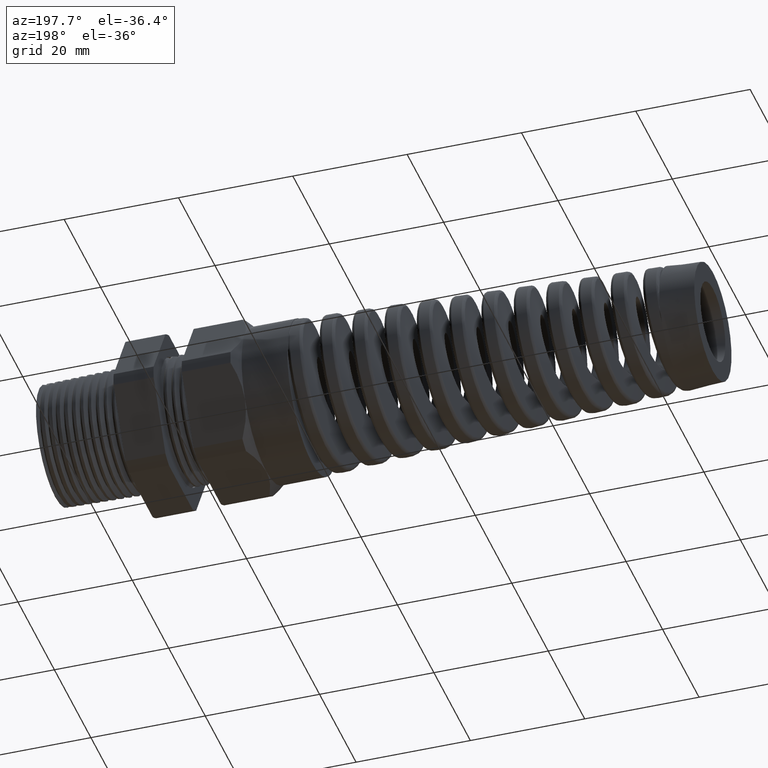
[diagram: clean part render]
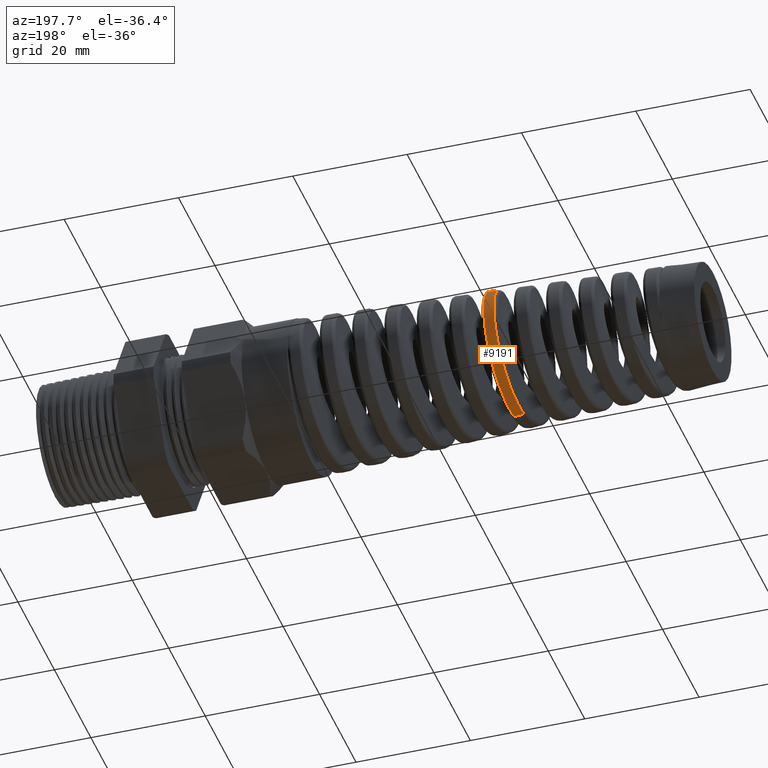
[diagram: same view with one face highlighted and labeled with its STEP entity id]
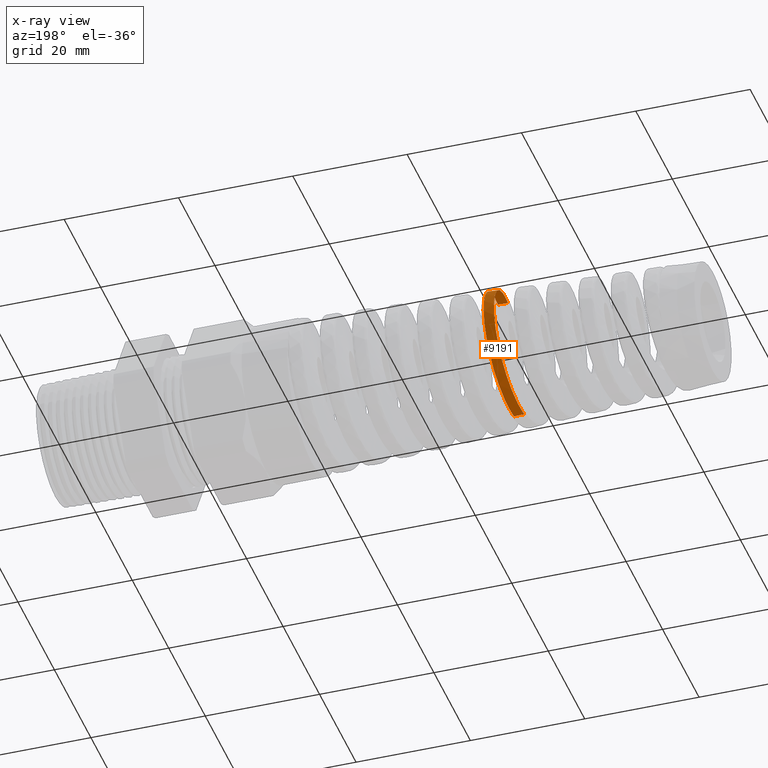
[diagram: x-ray of the same camera — body ghosted, the highlighted face saturated]
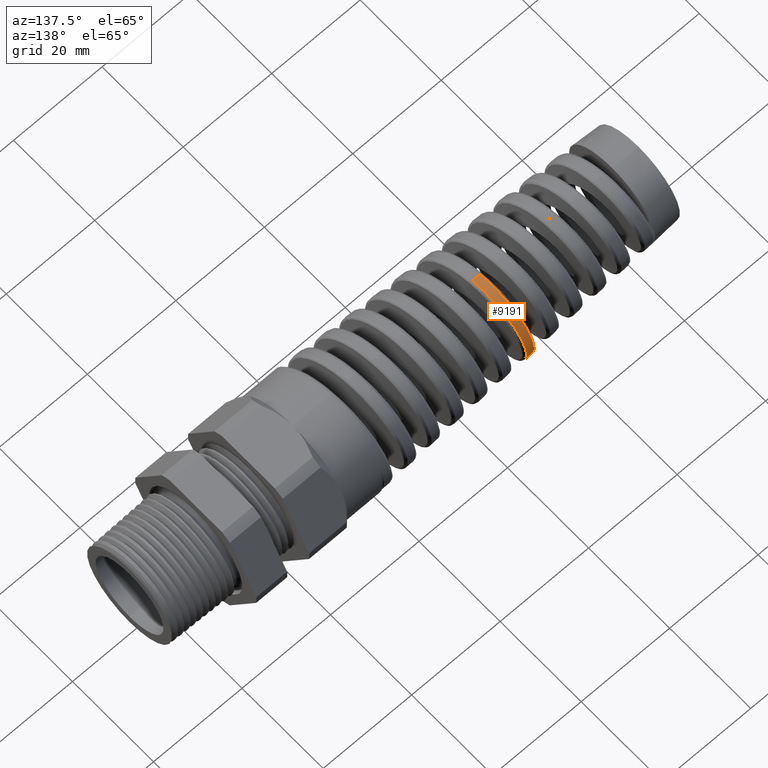
[diagram: same view with one face highlighted and labeled with its STEP entity id]
A machine part, auxiliary view. The second image highlights one B-rep face of the part: STEP entity #9191.
The next image is the same camera in x-ray: the body ghosted, the highlighted face saturated — about 0% of this face is hidden behind the body in this view.
A second angle (auxiliary view) of the same face is appended — the face is thin or edge-on in the first view.
In plain terms, the highlighted conical surface has half-angle 2.5 deg.
Its self-contained STEP definition (entity closure, byte-faithful):
#171 = EDGE_CURVE ( 'NONE', #9192, #192, #6572, .T. ) ;
#191 = ORIENTED_EDGE ( 'NONE', *, *, #171, .F. ) ;
#192 = VERTEX_POINT ( 'NONE', #6567 ) ;
#420 = ORIENTED_EDGE ( 'NONE', *, *, #421, .T. ) ;
#421 = EDGE_CURVE ( 'NONE', #423, #192, #6716, .T. ) ;
#422 = ORIENTED_EDGE ( 'NONE', *, *, #424, .T. ) ;
#423 = VERTEX_POINT ( 'NONE', #6717 ) ;
#424 = EDGE_CURVE ( 'NONE', #19204, #423, #6742, .T. ) ;
#429 = EDGE_CURVE ( 'NONE', #9192, #19204, #6822, .T. ) ;
#432 = ORIENTED_EDGE ( 'NONE', *, *, #429, .T. ) ;
#6567 = CARTESIAN_POINT ( 'NONE',  ( -2.879667577083220300, 5.469545711401259800E-013, -0.4658329278224777600 ) ) ;
#6569 = DIRECTION ( 'NONE',  ( 0.9990482215818576900, 0.0000000000000000000, -0.04361938736533632600 ) ) ;
#6570 = VECTOR ( 'NONE', #6569, 39.37007874015748100 ) ;
#6571 = CARTESIAN_POINT ( 'NONE',  ( -1.409999999999999900, 0.0000000000000000000, -0.5299999999999999200 ) ) ;
#6572 = LINE ( 'NONE', #6571, #6570 ) ;
#6701 = CARTESIAN_POINT ( 'NONE',  ( -2.796057127073379600, 0.3202171043964746600, 0.3436742604515603500 ) ) ;
#6702 = CARTESIAN_POINT ( 'NONE',  ( -2.794901268218248800, 0.3087176845181514600, 0.3541057587308799600 ) ) ;
#6703 = CARTESIAN_POINT ( 'NONE',  ( -2.792613083344449400, 0.2850045603970072800, 0.3735822861902750600 ) ) ;
#6704 = CARTESIAN_POINT ( 'NONE',  ( -2.791474762833239700, 0.2727367648882400600, 0.3826875851090892300 ) ) ;
#6705 = CARTESIAN_POINT ( 'NONE',  ( -2.789201042620686800, 0.2473944486181617900, 0.3996553276647125700 ) ) ;
#6706 = CARTESIAN_POINT ( 'NONE',  ( -2.788066038858495200, 0.2343198764972762000, 0.4075177465775709500 ) ) ;
#6707 = CARTESIAN_POINT ( 'NONE',  ( -2.785790505226805700, 0.2073565818558156500, 0.4219871249710854800 ) ) ;
#6708 = CARTESIAN_POINT ( 'NONE',  ( -2.784645585001770800, 0.1934193391996787100, 0.4286140450439818200 ) ) ;
#6709 = CARTESIAN_POINT ( 'NONE',  ( -2.781206980529783200, 0.1506654647735639900, 0.4464044010015029200 ) ) ;
#6710 = CARTESIAN_POINT ( 'NONE',  ( -2.778950324742671000, 0.1214425882007444900, 0.4553016468278492400 ) ) ;
#6711 = CARTESIAN_POINT ( 'NONE',  ( -2.775546881179742400, 0.07657032886923814700, 0.4643556374526838200 ) ) ;
#6712 = CARTESIAN_POINT ( 'NONE',  ( -2.774409523696960400, 0.06143865424620657100, 0.4666531649846749100 ) ) ;
#6713 = CARTESIAN_POINT ( 'NONE',  ( -2.772118716524639000, 0.03081865308245644900, 0.4697703786529018300 ) ) ;
#6714 = CARTESIAN_POINT ( 'NONE',  ( -2.770965199294318700, 0.01532906036265518900, 0.4705789761331387600 ) ) ;
#6715 = CARTESIAN_POINT ( 'NONE',  ( -2.769824617340381800, -3.160244313474981900E-015, 0.4706287750167118000 ) ) ;
#6716 = B_SPLINE_CURVE_WITH_KNOTS ( 'NONE', 3,
 ( #6715, #6714, #6713, #6712, #6711, #6710, #6709, #6708, #6707, #6706, #6705, #6704, #6703, #6702, #6701, #6776, #6775, #6774, #6773, #6772, #6771, #6770, #6769, #6768, #6767, #6766, #6765, #6764, #6763, #6762, #6761, #6760, #6759, #6758, #6757, #6756, #6755, #6754, #6753, #6752, #6751, #6750, #6749, #6748, #6747, #6746, #6745, #6744, #6743 ),
 .UNSPECIFIED., .F., .F.,
 ( 4, 2, 2, 2, 2, 2, 2, 2, 2, 2, 2, 2, 2, 2, 2, 2, 2, 2, 2, 2, 2, 2, 1, 2, 4 ),
 ( 0.4694751933714107500, 0.4706551712530038200, 0.4718351491345968400, 0.4741951048977829900, 0.4753750827793760700, 0.4765550606609690900, 0.4777350385425621600, 0.4789150164241552400, 0.4812749721873413300, 0.4836349279505274800, 0.4859948837137135800, 0.4871748615953066500, 0.4883548394768997300, 0.4907147952400858200, 0.4930747510032719700, 0.4942547288848649900, 0.4954347067664580700, 0.4977946625296442200, 0.4989746404112372900, 0.5001546182928303700, 0.5025145740560164100, 0.5036945519376094800, 0.5048745298192025600, 0.5060545077007956300, 0.5072344855823887100 ),
 .UNSPECIFIED. ) ;
#6717 = CARTESIAN_POINT ( 'NONE',  ( -2.769824617340381800, -3.160244313474981900E-015, 0.4706287750167118000 ) ) ;
#6739 = DIRECTION ( 'NONE',  ( 0.9990482215818576900, 5.341834311772763300E-018, 0.04361938736533632600 ) ) ;
#6740 = VECTOR ( 'NONE', #6739, 39.37007874015748100 ) ;
#6741 = CARTESIAN_POINT ( 'NONE',  ( -1.409999999999999900, 6.490628035480971200E-017, 0.5299999999999999200 ) ) ;
#6742 = LINE ( 'NONE', #6741, #6740 ) ;
#6743 = CARTESIAN_POINT ( 'NONE',  ( -2.879667577083220300, 5.469545711401259800E-013, -0.4658329278224777600 ) ) ;
#6744 = CARTESIAN_POINT ( 'NONE',  ( -2.878513298164826900, 0.01538681623498895800, -0.4658833247284168700 ) ) ;
#6745 = CARTESIAN_POINT ( 'NONE',  ( -2.877350105956318700, 0.03088443338288502900, -0.4651620893118841900 ) ) ;
#6746 = CARTESIAN_POINT ( 'NONE',  ( -2.875047148297439600, 0.06140453963809028300, -0.4622259283947832100 ) ) ;
#6747 = CARTESIAN_POINT ( 'NONE',  ( -2.872754567329303100, 0.09162394273105903300, -0.4578024120926853000 ) ) ;
#6748 = CARTESIAN_POINT ( 'NONE',  ( -2.870464038102440000, 0.1212503492403929100, -0.4504527714514426400 ) ) ;
#6749 = CARTESIAN_POINT ( 'NONE',  ( -2.868167072227588500, 0.1505759652955794800, -0.4416217277856856500 ) ) ;
#6750 = CARTESIAN_POINT ( 'NONE',  ( -2.867009382895522300, 0.1651602579184025800, -0.4364345871105237400 ) ) ;
#6751 = CARTESIAN_POINT ( 'NONE',  ( -2.863548912807567100, 0.2078979084752333200, -0.4187900154204002300 ) ) ;
#6752 = CARTESIAN_POINT ( 'NONE',  ( -2.861277160249337600, 0.2348247207940059000, -0.4043992163538459600 ) ) ;
#6753 = CARTESIAN_POINT ( 'NONE',  ( -2.857847346327781600, 0.2729299275872502100, -0.3789870107404891800 ) ) ;
#6754 = CARTESIAN_POINT ( 'NONE',  ( -2.856700550972821200, 0.2852480909796686300, -0.3698739956460177500 ) ) ;
#6755 = CARTESIAN_POINT ( 'NONE',  ( -2.854388741748366400, 0.3090940331165091800, -0.3503260992028104400 ) ) ;
#6756 = CARTESIAN_POINT ( 'NONE',  ( -2.853229640256641700, 0.3205548547545168400, -0.3399353689261077100 ) ) ;
#6757 = CARTESIAN_POINT ( 'NONE',  ( -2.849785119320762800, 0.3530269720503064200, -0.3074525870138163900 ) ) ;
#6758 = CARTESIAN_POINT ( 'NONE',  ( -2.847513857959167900, 0.3723756153746357000, -0.2838785678858082900 ) ) ;
#6759 = CARTESIAN_POINT ( 'NONE',  ( -2.844078013026415600, 0.3979327656937855000, -0.2456319240703092300 ) ) ;
#6760 = CARTESIAN_POINT ( 'NONE',  ( -2.842920922248027200, 0.4059080042256989500, -0.2323209123203104600 ) ) ;
#6761 = CARTESIAN_POINT ( 'NONE',  ( -2.840623210682796900, 0.4203936638445968100, -0.2051762133397373200 ) ) ;
#6762 = CARTESIAN_POINT ( 'NONE',  ( -2.839481542783454800, 0.4269206082768418100, -0.1913364513173516600 ) ) ;
#6763 = CARTESIAN_POINT ( 'NONE',  ( -2.836060016538192000, 0.4444065477040413700, -0.1490360442643164900 ) ) ;
#6764 = CARTESIAN_POINT ( 'NONE',  ( -2.833783171351283300, 0.4532909503897069600, -0.1198018825969603300 ) ) ;
#6765 = CARTESIAN_POINT ( 'NONE',  ( -2.829158586701564300, 0.4653064789958955600, -0.05919479105070622700 ) ) ;
#6766 = CARTESIAN_POINT ( 'NONE',  ( -2.826880128572468300, 0.4682532829342002100, -0.02867210201699844600 ) ) ;
#6767 = CARTESIAN_POINT ( 'NONE',  ( -2.823469507923232600, 0.4682234243586396700, 0.01708037377123367000 ) ) ;
#6768 = CARTESIAN_POINT ( 'NONE',  ( -2.822332027565875200, 0.4674701609171401100, 0.03234511354179435400 ) ) ;
#6769 = CARTESIAN_POINT ( 'NONE',  ( -2.820043185652855400, 0.4644475291465823300, 0.06290202591207030800 ) ) ;
#6770 = CARTESIAN_POINT ( 'NONE',  ( -2.818886534454379000, 0.4621587190438410400, 0.07826274540879499300 ) ) ;
#6771 = CARTESIAN_POINT ( 'NONE',  ( -2.815447864294487300, 0.4531266694023459200, 0.1234526198298760100 ) ) ;
#6772 = CARTESIAN_POINT ( 'NONE',  ( -2.813178635441462300, 0.4442420347776939700, 0.1526346708264994800 ) ) ;
#6773 = CARTESIAN_POINT ( 'NONE',  ( -2.808610312401737200, 0.4208315667978411700, 0.2091318865130940300 ) ) ;
#6774 = CARTESIAN_POINT ( 'NONE',  ( -2.806298038463488400, 0.4061229818610213000, 0.2366293068174580800 ) ) ;
#6775 = CARTESIAN_POINT ( 'NONE',  ( -2.801749919292936500, 0.3721428031847330300, 0.2874462674001396200 ) ) ;
#6776 = CARTESIAN_POINT ( 'NONE',  ( -2.799491978064904800, 0.3528040982582358900, 0.3110439546628286900 ) ) ;
#6777 = CARTESIAN_POINT ( 'NONE',  ( -2.848350754152112300, 0.1201738631428210400, 0.4517406087043505100 ) ) ;
#6778 = CARTESIAN_POINT ( 'NONE',  ( -2.850651472699592400, 0.1495155491143070600, 0.4427895477860349600 ) ) ;
#6779 = CARTESIAN_POINT ( 'NONE',  ( -2.851801252577573600, 0.1639444849695335100, 0.4375942047347145500 ) ) ;
#6780 = CARTESIAN_POINT ( 'NONE',  ( -2.855228388334568400, 0.2060563919965725000, 0.4200725684757854500 ) ) ;
#6781 = CARTESIAN_POINT ( 'NONE',  ( -2.857500011315860600, 0.2327752268827707200, 0.4057689625979887800 ) ) ;
#6782 = CARTESIAN_POINT ( 'NONE',  ( -2.860940860728924000, 0.2707981476489014200, 0.3803466167565556800 ) ) ;
#6783 = CARTESIAN_POINT ( 'NONE',  ( -2.862098581908763000, 0.2831870934136910300, 0.3711522250904563700 ) ) ;
#6784 = CARTESIAN_POINT ( 'NONE',  ( -2.864392410988623200, 0.3067927086718251800, 0.3517579954020786400 ) ) ;
#6785 = CARTESIAN_POINT ( 'NONE',  ( -2.865531568794727100, 0.3180466610897583200, 0.3415432835002120100 ) ) ;
#6786 = CARTESIAN_POINT ( 'NONE',  ( -2.868945121820813500, 0.3501978172563903200, 0.3093821322616776000 ) ) ;
#6787 = CARTESIAN_POINT ( 'NONE',  ( -2.871215690603960100, 0.3694999264604235100, 0.2859333819914269300 ) ) ;
#6788 = CARTESIAN_POINT ( 'NONE',  ( -2.875841785472774700, 0.4036592953586464200, 0.2348594942369213700 ) ) ;
#6789 = CARTESIAN_POINT ( 'NONE',  ( -2.878126188170168700, 0.4179801221576504600, 0.2080250895687968700 ) ) ;
#6790 = CARTESIAN_POINT ( 'NONE',  ( -2.881552740840932700, 0.4354152012327321400, 0.1660329553345442900 ) ) ;
#6791 = CARTESIAN_POINT ( 'NONE',  ( -2.882694656409140700, 0.4405522014767495100, 0.1517364352719029800 ) ) ;
#6792 = CARTESIAN_POINT ( 'NONE',  ( -2.884990995901418400, 0.4494468812050945200, 0.1225329196649510000 ) ) ;
#6793 = CARTESIAN_POINT ( 'NONE',  ( -2.886149911633654900, 0.4532097007426629200, 0.1075660251543064900 ) ) ;
#6794 = CARTESIAN_POINT ( 'NONE',  ( -2.889592336730242300, 0.4621677477860886000, 0.06268050407899561400 ) ) ;
#6795 = CARTESIAN_POINT ( 'NONE',  ( -2.891863110575464200, 0.4651569240906601200, 0.03251797143324487700 ) ) ;
#6796 = CARTESIAN_POINT ( 'NONE',  ( -2.895302792139810200, 0.4652147829126119200, -0.01307496169130233100 ) ) ;
#6797 = CARTESIAN_POINT ( 'NONE',  ( -2.896457404999988900, 0.4644877768237979400, -0.02836583101730812500 ) ) ;
#6798 = CARTESIAN_POINT ( 'NONE',  ( -2.898776643880693900, 0.4615058256277827000, -0.05892118619409079900 ) ) ;
#6799 = CARTESIAN_POINT ( 'NONE',  ( -2.899927433946159400, 0.4592722699488036600, -0.07400302594844347700 ) ) ;
#6800 = CARTESIAN_POINT ( 'NONE',  ( -2.903365803745748600, 0.4504160343904944400, -0.1186791535434609700 ) ) ;
#6801 = CARTESIAN_POINT ( 'NONE',  ( -2.905637773419599900, 0.4416579753641940400, -0.1477095191981557500 ) ) ;
#6802 = CARTESIAN_POINT ( 'NONE',  ( -2.909093624314664800, 0.4241494829368580000, -0.1900943840070405100 ) ) ;
#6803 = CARTESIAN_POINT ( 'NONE',  ( -2.910254760709719300, 0.4175629740015015500, -0.2040373185795523700 ) ) ;
#6804 = CARTESIAN_POINT ( 'NONE',  ( -2.912554348088402200, 0.4032046381913280700, -0.2309173474662830100 ) ) ;
#6805 = CARTESIAN_POINT ( 'NONE',  ( -2.914844127928546400, 0.3876013891607713000, -0.2569525210576235100 ) ) ;
#6806 = CARTESIAN_POINT ( 'NONE',  ( -2.917136396485759500, 0.3695497675806389500, -0.2813241171977072200 ) ) ;
#6807 = CARTESIAN_POINT ( 'NONE',  ( -2.919439386569274500, 0.3502592660969189900, -0.3048530721103105400 ) ) ;
#6808 = CARTESIAN_POINT ( 'NONE',  ( -2.920601721759729300, 0.3399427029911013000, -0.3162469116815092000 ) ) ;
#6809 = CARTESIAN_POINT ( 'NONE',  ( -2.924077538378325100, 0.3074348273549855100, -0.3487411067595696500 ) ) ;
#6810 = CARTESIAN_POINT ( 'NONE',  ( -2.926355100939013600, 0.2839552175620991300, -0.3679608276056121600 ) ) ;
#6811 = CARTESIAN_POINT ( 'NONE',  ( -2.929791318063378100, 0.2461067540020754600, -0.3932273714186228000 ) ) ;
#6812 = CARTESIAN_POINT ( 'NONE',  ( -2.930939871991358200, 0.2330492565476560400, -0.4010514435090976600 ) ) ;
#6813 = CARTESIAN_POINT ( 'NONE',  ( -2.933255842853300400, 0.2060265371062265100, -0.4154678538439639500 ) ) ;
#6814 = CARTESIAN_POINT ( 'NONE',  ( -2.934418820514498500, 0.1921098552648923300, -0.4220240094934651900 ) ) ;
#6815 = CARTESIAN_POINT ( 'NONE',  ( -2.937877371807900300, 0.1499037377375913300, -0.4394247336952749100 ) ) ;
#6816 = CARTESIAN_POINT ( 'NONE',  ( -2.940167162276773100, 0.1208894126228707000, -0.4481743636091123400 ) ) ;
#6817 = CARTESIAN_POINT ( 'NONE',  ( -2.943628710561403000, 0.07605154013025476600, -0.4570060732215272500 ) ) ;
#6818 = CARTESIAN_POINT ( 'NONE',  ( -2.944793517617587700, 0.06079799954313608300, -0.4592348752039447900 ) ) ;
#6819 = CARTESIAN_POINT ( 'NONE',  ( -2.947106759420210900, 0.03035427548306379000, -0.4621451862751809200 ) ) ;
#6820 = CARTESIAN_POINT ( 'NONE',  ( -2.948255408084903300, 0.01516231426174941200, -0.4628383184488952800 ) ) ;
#6821 = CARTESIAN_POINT ( 'NONE',  ( -2.949402635753238100, -2.758371013767076700E-014, -0.4627882294071643000 ) ) ;
#6822 = B_SPLINE_CURVE_WITH_KNOTS ( 'NONE', 3,
 ( #6821, #6820, #6819, #6818, #6817, #6816, #6815, #6814, #6813, #6812, #6811, #6810, #6809, #6808, #6807, #6806, #6805, #6804, #6803, #6802, #6801, #6800, #6799, #6798, #6797, #6796, #6795, #6794, #6793, #6792, #6791, #6790, #6789, #6788, #6787, #6786, #6785, #6784, #6783, #6782, #6781, #6780, #6779, #6778, #6777, #6859, #6858, #6857, #6856 ),
 .UNSPECIFIED., .F., .F.,
 ( 4, 2, 2, 2, 2, 2, 2, 2, 1, 2, 2, 2, 2, 2, 2, 2, 2, 2, 2, 2, 2, 2, 2, 2, 4 ),
 ( 0.3432579825773451300, 0.3444332803475006500, 0.3456085781176561600, 0.3479591736579672500, 0.3491344714281227600, 0.3503097691982782800, 0.3526603647385893000, 0.3538356625087448200, 0.3550109602789003300, 0.3561862580490558500, 0.3573615558192113600, 0.3597121513595224500, 0.3608874491296779600, 0.3620627468998334800, 0.3644133424401445100, 0.3655886402103000200, 0.3667639379804555300, 0.3691145335207666200, 0.3714651290610776500, 0.3726404268312331600, 0.3738157246013887300, 0.3761663201416997600, 0.3773416179118552800, 0.3785169156820108500, 0.3808675112223218800 ),
 .UNSPECIFIED. ) ;
#6856 = CARTESIAN_POINT ( 'NONE',  ( -2.839242103838153200, 1.528936146393952000E-015, 0.4675979421018802200 ) ) ;
#6857 = CARTESIAN_POINT ( 'NONE',  ( -2.841538743042520700, 0.03058438289717971600, 0.4674976686686971900 ) ) ;
#6858 = CARTESIAN_POINT ( 'NONE',  ( -2.843798957504743500, 0.06075453691876515900, 0.4644266798631095900 ) ) ;
#6859 = CARTESIAN_POINT ( 'NONE',  ( -2.847210200904538800, 0.1053962557983772900, 0.4554608620698617500 ) ) ;
#9191 = ADVANCED_FACE ( 'NONE', ( #16558 ), #16557, .T. ) ;
#9192 = VERTEX_POINT ( 'NONE', #16556 ) ;
#9193 = EDGE_LOOP ( 'NONE', ( #432, #422, #420, #191 ) ) ;
#16552 = DIRECTION ( 'NONE',  ( 0.0000000000000000000, 0.0000000000000000000, -1.000000000000000000 ) ) ;
#16553 = DIRECTION ( 'NONE',  ( 1.000000000000000000, 0.0000000000000000000, 0.0000000000000000000 ) ) ;
#16554 = CARTESIAN_POINT ( 'NONE',  ( -1.409999999999999900, 0.0000000000000000000, 0.0000000000000000000 ) ) ;
#16555 = AXIS2_PLACEMENT_3D ( 'NONE', #16554, #16553, #16552 ) ;
#16556 = CARTESIAN_POINT ( 'NONE',  ( -2.949402635753238100, -2.758371013767076700E-014, -0.4627882294071643000 ) ) ;
#16557 = CONICAL_SURFACE ( 'NONE', #16555, 0.5299999999999999200, 0.04363323129985856300 ) ;
#16558 = FACE_OUTER_BOUND ( 'NONE', #9193, .T. ) ;
#18811 = CARTESIAN_POINT ( 'NONE',  ( -2.839242103838153200, 1.528936146393952000E-015, 0.4675979421018802200 ) ) ;
#19204 = VERTEX_POINT ( 'NONE', #18811 ) ;